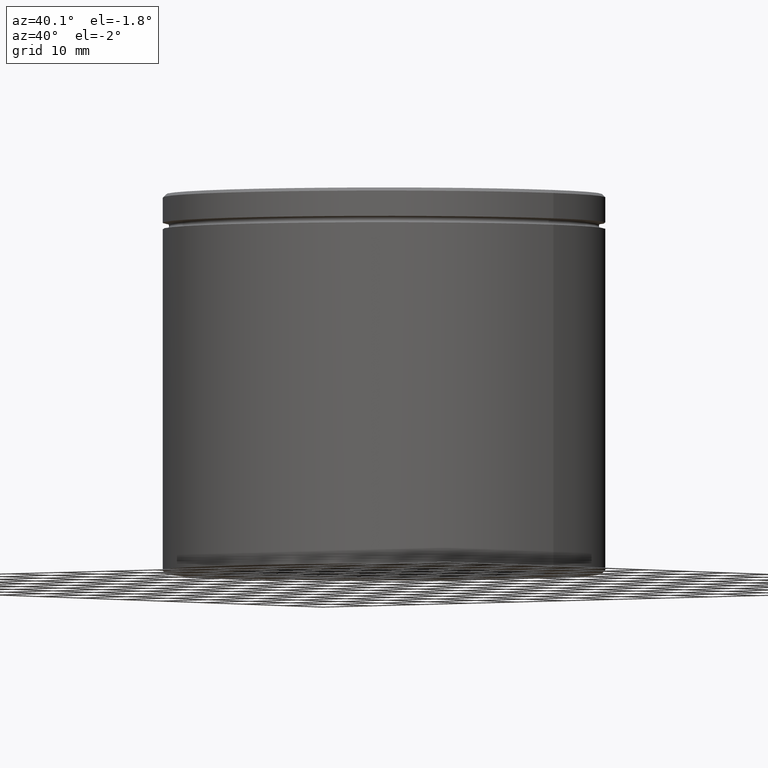
[diagram: clean part render]
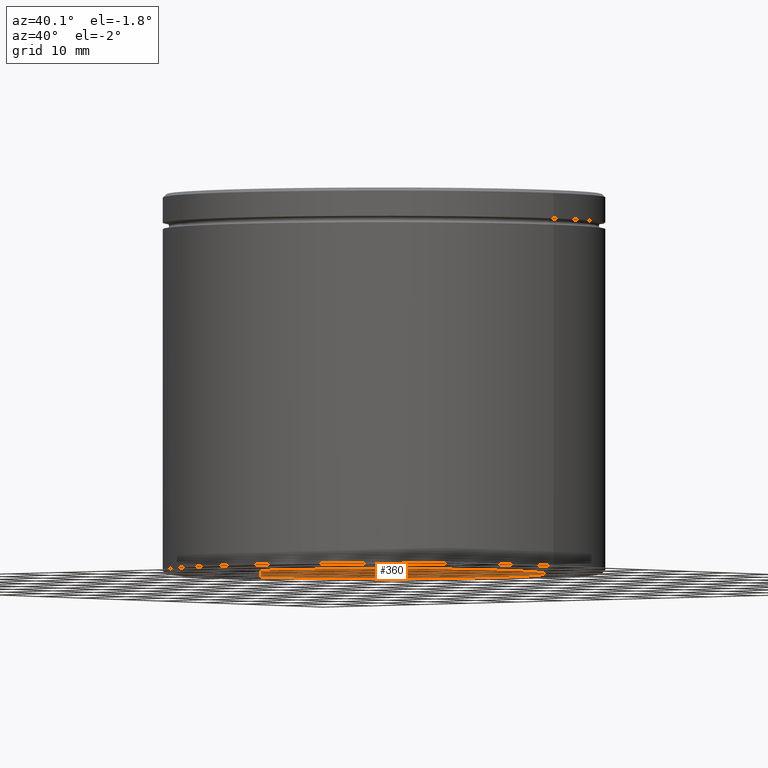
[diagram: same view with one face highlighted and labeled with its STEP entity id]
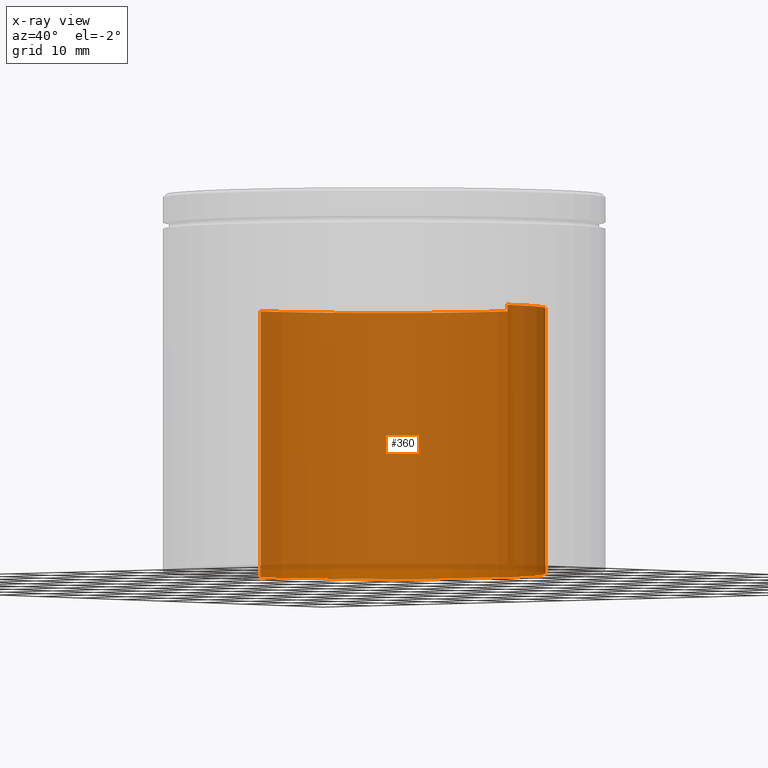
[diagram: x-ray of the same camera — body ghosted, the highlighted face saturated]
A machine part, auxiliary view. The second image highlights one B-rep face of the part: STEP entity #360.
The next image is the same camera in x-ray: the body ghosted, the highlighted face saturated — about 95% of this face is hidden behind the body in this view.
In plain terms, the highlighted cylindrical surface (partial cylindrical patch) has radius 25.5 mm, axis along (-0, -0, -1).
Its self-contained STEP definition (entity closure, byte-faithful):
#31 = DIRECTION ( 'NONE',  ( 0.000000000000000000, 0.000000000000000000, -1.000000000000000000 ) ) ;
#35 = CARTESIAN_POINT ( 'NONE',  ( 25.50000000000000000, 3.122849337825749828E-15, -17.99999999999999645 ) ) ;
#50 = ORIENTED_EDGE ( 'NONE', *, *, #324, .F. ) ;
#60 = CIRCLE ( 'NONE', #370, 25.50000000000000000 ) ;
#71 = AXIS2_PLACEMENT_3D ( 'NONE', #383, #31, #337 ) ;
#128 = DIRECTION ( 'NONE',  ( -0.000000000000000000, -0.000000000000000000, -1.000000000000000000 ) ) ;
#148 = EDGE_CURVE ( 'NONE', #506, #265, #60, .T. ) ;
#166 = CARTESIAN_POINT ( 'NONE',  ( 0.000000000000000000, 0.000000000000000000, -17.99999999999999645 ) ) ;
#179 = DIRECTION ( 'NONE',  ( -1.000000000000000000, 0.000000000000000000, 0.000000000000000000 ) ) ;
#208 = DIRECTION ( 'NONE',  ( -1.000000000000000000, 0.000000000000000000, 0.000000000000000000 ) ) ;
#265 = VERTEX_POINT ( 'NONE', #413 ) ;
#295 = EDGE_CURVE ( 'NONE', #461, #332, #499, .T. ) ;
#318 = CARTESIAN_POINT ( 'NONE',  ( -25.50000000000000000, 0.000000000000000000, -60.00000000000000000 ) ) ;
#324 = EDGE_CURVE ( 'NONE', #332, #265, #341, .T. ) ;
#332 = VERTEX_POINT ( 'NONE', #35 ) ;
#337 = DIRECTION ( 'NONE',  ( -1.000000000000000000, 0.000000000000000000, 0.000000000000000000 ) ) ;
#338 = EDGE_CURVE ( 'NONE', #461, #506, #518, .T. ) ;
#341 = LINE ( 'NONE', #382, #535 ) ;
#343 = VECTOR ( 'NONE', #516, 1000.000000000000000 ) ;
#355 = EDGE_LOOP ( 'NONE', ( #50, #442, #501, #500 ) ) ;
#360 = ADVANCED_FACE ( 'NONE', ( #473 ), #427, .F. ) ;
#370 = AXIS2_PLACEMENT_3D ( 'NONE', #393, #482, #179 ) ;
#380 = CARTESIAN_POINT ( 'NONE',  ( -25.50000000000000000, 0.000000000000000000, -17.99999999999999645 ) ) ;
#382 = CARTESIAN_POINT ( 'NONE',  ( 25.50000000000000000, 3.122849337825749828E-15, -17.99999999999999645 ) ) ;
#383 = CARTESIAN_POINT ( 'NONE',  ( 0.000000000000000000, 0.000000000000000000, -17.99999999999999645 ) ) ;
#393 = CARTESIAN_POINT ( 'NONE',  ( 0.000000000000000000, 0.000000000000000000, -60.00000000000000000 ) ) ;
#400 = CARTESIAN_POINT ( 'NONE',  ( -25.50000000000000000, 0.000000000000000000, -17.99999999999999645 ) ) ;
#413 = CARTESIAN_POINT ( 'NONE',  ( 25.50000000000000000, 3.122849337825749828E-15, -60.00000000000000000 ) ) ;
#415 = AXIS2_PLACEMENT_3D ( 'NONE', #166, #128, #208 ) ;
#427 = CYLINDRICAL_SURFACE ( 'NONE', #415, 25.50000000000000000 ) ;
#442 = ORIENTED_EDGE ( 'NONE', *, *, #295, .F. ) ;
#461 = VERTEX_POINT ( 'NONE', #400 ) ;
#465 = DIRECTION ( 'NONE',  ( -0.000000000000000000, -0.000000000000000000, -1.000000000000000000 ) ) ;
#473 = FACE_OUTER_BOUND ( 'NONE', #355, .T. ) ;
#482 = DIRECTION ( 'NONE',  ( 0.000000000000000000, 0.000000000000000000, -1.000000000000000000 ) ) ;
#499 = CIRCLE ( 'NONE', #71, 25.50000000000000000 ) ;
#500 = ORIENTED_EDGE ( 'NONE', *, *, #148, .T. ) ;
#501 = ORIENTED_EDGE ( 'NONE', *, *, #338, .T. ) ;
#506 = VERTEX_POINT ( 'NONE', #318 ) ;
#516 = DIRECTION ( 'NONE',  ( -0.000000000000000000, -0.000000000000000000, -1.000000000000000000 ) ) ;
#518 = LINE ( 'NONE', #380, #343 ) ;
#535 = VECTOR ( 'NONE', #465, 1000.000000000000000 ) ;